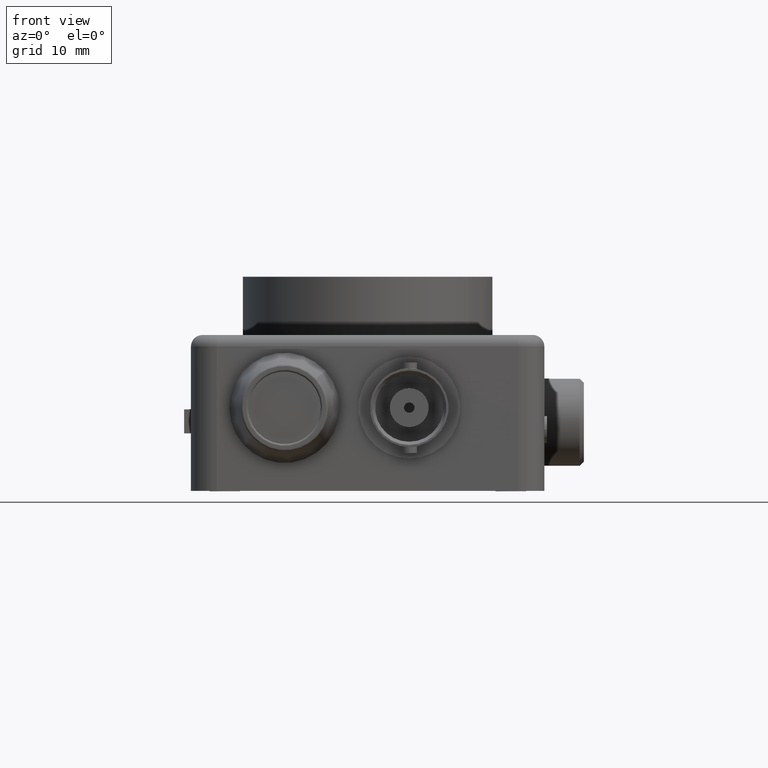
[diagram: clean part render]
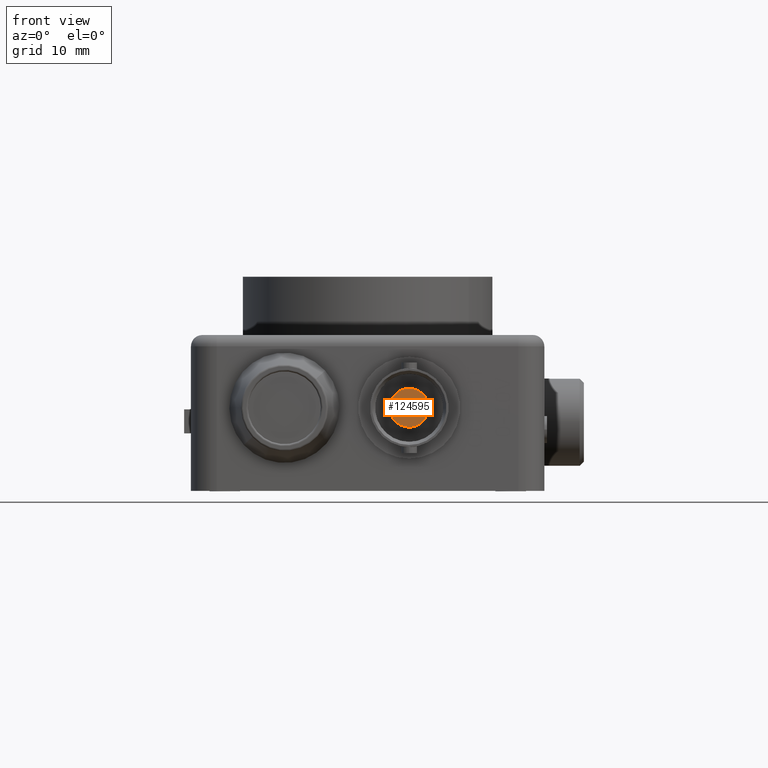
[diagram: same view with one face highlighted and labeled with its STEP entity id]
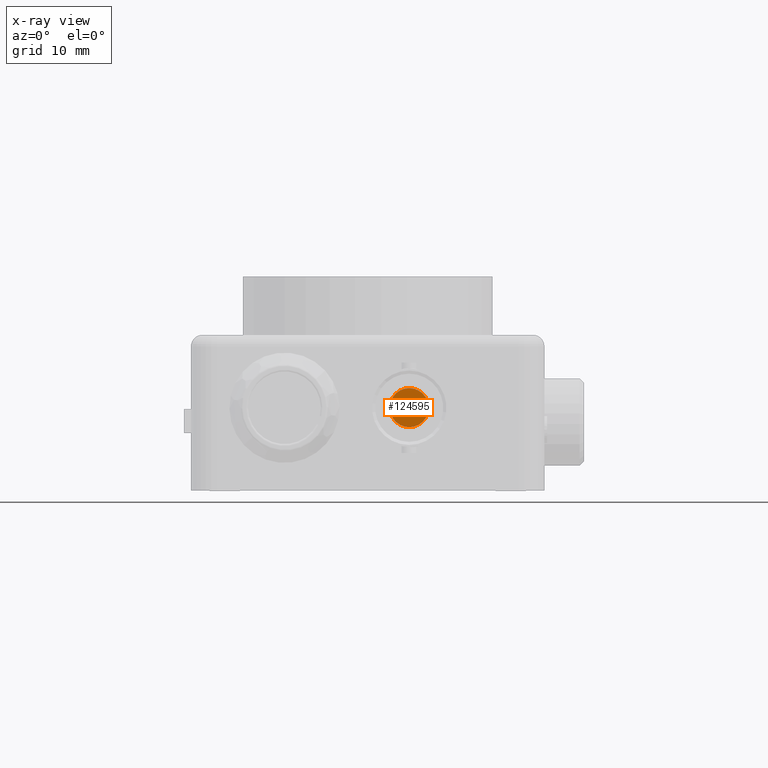
[diagram: x-ray of the same camera — body ghosted, the highlighted face saturated]
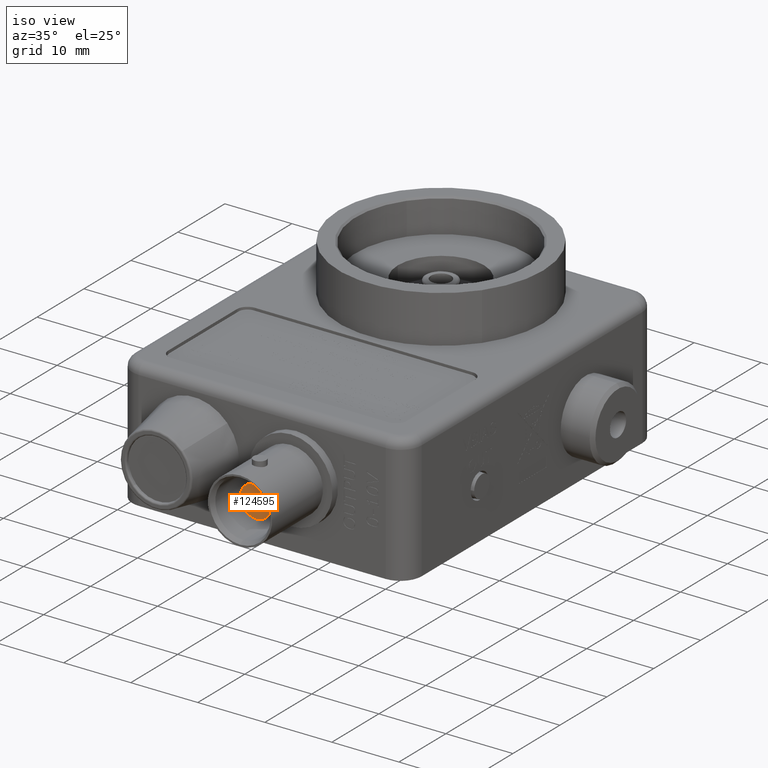
[diagram: same view with one face highlighted and labeled with its STEP entity id]
A machine part, front view. The second image highlights one B-rep face of the part: STEP entity #124595.
The next image is the same camera in x-ray: the body ghosted, the highlighted face saturated — about 0% of this face is hidden behind the body in this view.
A second angle (iso view) of the same face is appended — the face is thin or edge-on in the first view.
In plain terms, the highlighted planar face has unit normal (0, -1, -0).
Its self-contained STEP definition (entity closure, byte-faithful):
#5553 = DIRECTION ( 'NONE',  ( 0.0000000000000000000, -1.000000000000000000, 1.883637786926287800E-032 ) ) ;
#15227 = FACE_OUTER_BOUND ( 'NONE', #49157, .T. ) ;
#15731 = CIRCLE ( 'NONE', #120012, 0.02500000000000000500 ) ;
#21303 = CARTESIAN_POINT ( 'NONE',  ( 1.049999999999999800, -0.3355000000000000800, 0.4000000000000000800 ) ) ;
#22132 = ORIENTED_EDGE ( 'NONE', *, *, #84867, .T. ) ;
#23299 = CARTESIAN_POINT ( 'NONE',  ( 1.049999999999999800, -0.3355000000000000800, 0.4000000000000000800 ) ) ;
#23465 = PLANE ( 'NONE',  #118085 ) ;
#30972 = CIRCLE ( 'NONE', #80853, 0.09350000000000004100 ) ;
#31542 = DIRECTION ( 'NONE',  ( -7.304406400171823100E-015, 0.0000000000000000000, 1.000000000000000000 ) ) ;
#32122 = AXIS2_PLACEMENT_3D ( 'NONE', #23299, #94591, #33545 ) ;
#33545 = DIRECTION ( 'NONE',  ( -5.463695987328525600E-015, 0.0000000000000000000, 1.000000000000000000 ) ) ;
#36523 = DIRECTION ( 'NONE',  ( 0.0000000000000000000, -1.000000000000000000, 1.883637786926287800E-032 ) ) ;
#39158 = FACE_BOUND ( 'NONE', #126111, .T. ) ;
#43700 = VERTEX_POINT ( 'NONE', #87085 ) ;
#45249 = VERTEX_POINT ( 'NONE', #83419 ) ;
#49157 = EDGE_LOOP ( 'NONE', ( #73606, #22132 ) ) ;
#52541 = ORIENTED_EDGE ( 'NONE', *, *, #98070, .F. ) ;
#53093 = ORIENTED_EDGE ( 'NONE', *, *, #120003, .F. ) ;
#54675 = CARTESIAN_POINT ( 'NONE',  ( 1.049999999999999800, -0.3355000000000000800, 0.4000000000000000800 ) ) ;
#58501 = CIRCLE ( 'NONE', #32122, 0.02500000000000000500 ) ;
#60714 = CARTESIAN_POINT ( 'NONE',  ( 1.050000000000000500, -0.3355000000000000800, 0.3065000000000000500 ) ) ;
#64929 = DIRECTION ( 'NONE',  ( -6.728602478414525300E-015, -1.785747628369931800E-032, 1.000000000000000000 ) ) ;
#65923 = AXIS2_PLACEMENT_3D ( 'NONE', #21303, #92601, #31542 ) ;
#66648 = CARTESIAN_POINT ( 'NONE',  ( 1.049999999999999800, -0.3355000000000000800, 0.4000000000000000800 ) ) ;
#73606 = ORIENTED_EDGE ( 'NONE', *, *, #108782, .T. ) ;
#76907 = DIRECTION ( 'NONE',  ( -5.463695987328525600E-015, 0.0000000000000000000, 1.000000000000000000 ) ) ;
#80853 = AXIS2_PLACEMENT_3D ( 'NONE', #97598, #36523, #107838 ) ;
#83419 = CARTESIAN_POINT ( 'NONE',  ( 1.049999999999998900, -0.3355000000000000800, 0.4935000000000001600 ) ) ;
#84867 = EDGE_CURVE ( 'NONE', #45249, #109523, #30972, .T. ) ;
#87085 = CARTESIAN_POINT ( 'NONE',  ( 1.049999999999999600, -0.3355000000000000800, 0.4250000000000001000 ) ) ;
#92601 = DIRECTION ( 'NONE',  ( 0.0000000000000000000, -1.000000000000000000, 1.883637786926287800E-032 ) ) ;
#94591 = DIRECTION ( 'NONE',  ( 0.0000000000000000000, -1.000000000000000000, 1.883637786926287800E-032 ) ) ;
#97598 = CARTESIAN_POINT ( 'NONE',  ( 1.049999999999999800, -0.3355000000000000800, 0.4000000000000000800 ) ) ;
#98070 = EDGE_CURVE ( 'NONE', #43700, #117136, #58501, .T. ) ;
#107838 = DIRECTION ( 'NONE',  ( -7.304406400171823100E-015, 0.0000000000000000000, 1.000000000000000000 ) ) ;
#108782 = EDGE_CURVE ( 'NONE', #109523, #45249, #110062, .T. ) ;
#109523 = VERTEX_POINT ( 'NONE', #60714 ) ;
#110062 = CIRCLE ( 'NONE', #65923, 0.09350000000000004100 ) ;
#117136 = VERTEX_POINT ( 'NONE', #124747 ) ;
#118085 = AXIS2_PLACEMENT_3D ( 'NONE', #54675, #126015, #64929 ) ;
#120003 = EDGE_CURVE ( 'NONE', #117136, #43700, #15731, .T. ) ;
#120012 = AXIS2_PLACEMENT_3D ( 'NONE', #66648, #5553, #76907 ) ;
#124595 = ADVANCED_FACE ( 'NONE', ( #39158, #15227 ), #23465, .T. ) ;
#124747 = CARTESIAN_POINT ( 'NONE',  ( 1.049999999999999800, -0.3355000000000000800, 0.3750000000000001100 ) ) ;
#126015 = DIRECTION ( 'NONE',  ( 2.468983579962025400E-046, -1.000000000000000000, -1.785747628369931800E-032 ) ) ;
#126111 = EDGE_LOOP ( 'NONE', ( #52541, #53093 ) ) ;